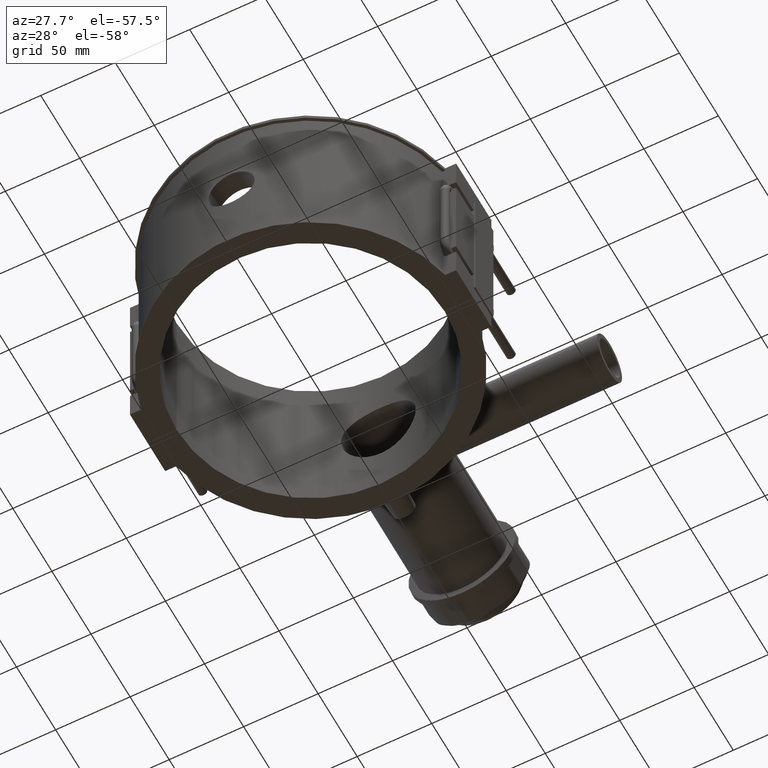
[diagram: clean part render]
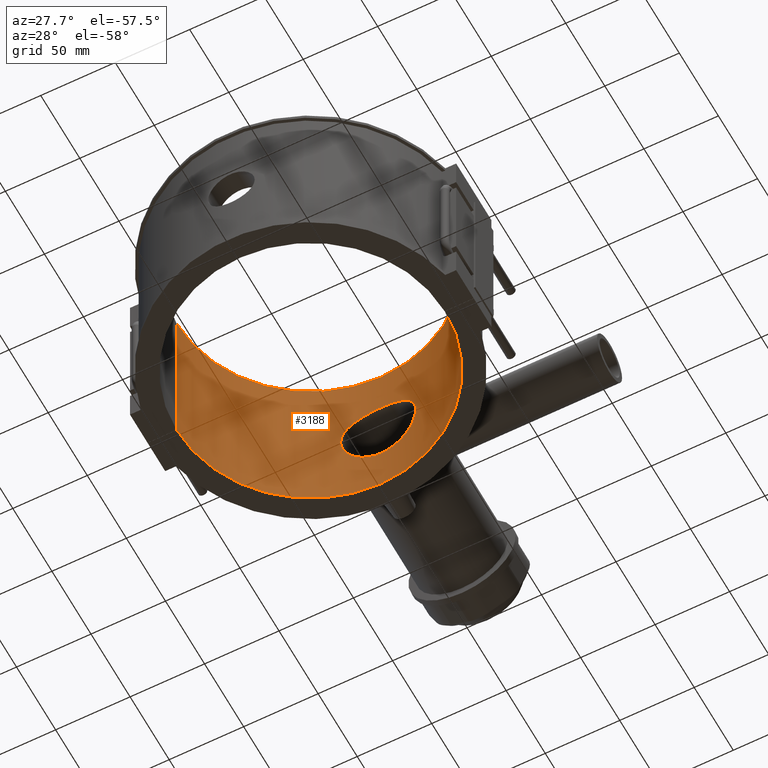
[diagram: same view with one face highlighted and labeled with its STEP entity id]
A machine part, auxiliary view. The second image highlights one B-rep face of the part: STEP entity #3188.
In plain terms, the highlighted cylindrical surface (partial cylindrical patch) has radius 90 mm, axis along (0, 0, 1).
Its self-contained STEP definition (entity closure, byte-faithful):
#267=LINE('',#6164,#546);
#314=LINE('',#6471,#593);
#546=VECTOR('',#4133,118.);
#593=VECTOR('',#4292,118.);
#810=CIRCLE('',#3468,90.);
#811=CIRCLE('',#3469,90.);
#862=FACE_BOUND('',#1273,.T.);
#1041=FACE_OUTER_BOUND('',#1272,.T.);
#1272=EDGE_LOOP('',(#2942,#2943,#2944,#2945));
#1273=EDGE_LOOP('',(#2946));
#1276=B_SPLINE_CURVE_WITH_KNOTS('',3,(#4314,#4315,#4316,#4317,#4318,#4319,
#4320,#4321,#4322,#4323,#4324,#4325,#4326,#4327,#4328,#4329,#4330,#4331,
#4332,#4333,#4334,#4335,#4336,#4337,#4338,#4339,#4340,#4341,#4342,#4343,
#4344,#4345,#4346,#4347,#4348,#4349,#4350,#4351,#4352,#4353,#4354,#4355,
#4356,#4357,#4358,#4359,#4360,#4361,#4362,#4363,#4364,#4365,#4366,#4367,
#4368,#4369,#4370,#4371,#4372,#4373,#4374,#4375,#4376,#4377,#4378,#4379),
 .UNSPECIFIED.,.T.,.F.,(4,2,2,2,2,2,2,2,2,2,2,2,2,2,2,2,2,2,2,2,2,2,2,2,
2,2,2,2,2,2,2,2,4),(0.,0.477443325081398,0.954886650162797,1.4323299752442,
1.90977330032559,2.3871099306016,2.8644465608776,3.34178319115361,3.81911982142961,
4.29645645170562,4.77379308198163,5.25112971225763,5.72846634253364,6.20590966761503,
6.68335299269643,7.16079631777783,7.63823964285923,8.11568296794063,8.59312629302203,
9.07056961810343,9.54801294318482,10.0253495734608,10.5026862037368,10.9800228340128,
11.4573594642888,11.9346960945649,12.4120327248409,12.8893693551169,13.3667059853929,
13.8441493104743,14.3215926355557,14.7990359606371,15.2764792857185),
 .UNSPECIFIED.);
#1331=VERTEX_POINT('',#4313);
#1581=VERTEX_POINT('',#6161);
#1582=VERTEX_POINT('',#6163);
#1623=VERTEX_POINT('',#6468);
#1624=VERTEX_POINT('',#6470);
#1626=EDGE_CURVE('',#1331,#1331,#1276,.T.);
#1984=EDGE_CURVE('',#1582,#1581,#267,.T.);
#2058=EDGE_CURVE('',#1624,#1623,#314,.T.);
#2063=EDGE_CURVE('',#1582,#1623,#810,.T.);
#2064=EDGE_CURVE('',#1624,#1581,#811,.T.);
#2942=ORIENTED_EDGE('',*,*,#2058,.T.);
#2943=ORIENTED_EDGE('',*,*,#2063,.F.);
#2944=ORIENTED_EDGE('',*,*,#1984,.T.);
#2945=ORIENTED_EDGE('',*,*,#2064,.F.);
#2946=ORIENTED_EDGE('',*,*,#1626,.T.);
#3009=CYLINDRICAL_SURFACE('',#3467,90.);
#3188=ADVANCED_FACE('',(#1041,#862),#3009,.F.);
#3467=AXIS2_PLACEMENT_3D('',#6479,#4301,#4302);
#3468=AXIS2_PLACEMENT_3D('',#6480,#4303,#4304);
#3469=AXIS2_PLACEMENT_3D('',#6481,#4305,#4306);
#4133=DIRECTION('',(0.,0.,-1.));
#4292=DIRECTION('',(0.,0.,1.));
#4301=DIRECTION('center_axis',(0.,0.,1.));
#4302=DIRECTION('ref_axis',(-1.,0.,0.));
#4303=DIRECTION('center_axis',(0.,0.,-1.));
#4304=DIRECTION('ref_axis',(-1.,0.,0.));
#4305=DIRECTION('center_axis',(0.,0.,1.));
#4306=DIRECTION('ref_axis',(-1.,0.,0.));
#4313=CARTESIAN_POINT('',(-25.2,86.4,3.1641356201817E-14));
#4314=CARTESIAN_POINT('Ctrl Pts',(-25.2,86.4,3.1641356201817E-14));
#4315=CARTESIAN_POINT('Ctrl Pts',(-25.2,86.4,1.59147775027136));
#4316=CARTESIAN_POINT('Ctrl Pts',(-25.04680886185,86.4451781058194,3.23439474542125));
#4317=CARTESIAN_POINT('Ctrl Pts',(-24.4048126771142,86.6286128827848,6.4968501475537));
#4318=CARTESIAN_POINT('Ctrl Pts',(-23.9161773317442,86.766705708498,8.11643115684085));
#4319=CARTESIAN_POINT('Ctrl Pts',(-22.6277583739087,87.1115909504829,11.2180470887225));
#4320=CARTESIAN_POINT('Ctrl Pts',(-21.8269517205412,87.3183021901904,12.7027151624657));
#4321=CARTESIAN_POINT('Ctrl Pts',(-19.9797093340163,87.7594036762886,15.4462296040677));
#4322=CARTESIAN_POINT('Ctrl Pts',(-18.933129949065,87.9933424113846,16.705051822737));
#4323=CARTESIAN_POINT('Ctrl Pts',(-16.7053007783193,88.4433381722002,18.9328809934827));
#4324=CARTESIAN_POINT('Ctrl Pts',(-15.4465952970086,88.6754288638796,19.9794315480119));
#4325=CARTESIAN_POINT('Ctrl Pts',(-12.7030111316839,89.1098339053098,21.8267839935761));
#4326=CARTESIAN_POINT('Ctrl Pts',(-11.2181566678658,89.3117383950323,22.6277182085153));
#4327=CARTESIAN_POINT('Ctrl Pts',(-8.11617301602074,89.646870494495,23.9162792097854));
#4328=CARTESIAN_POINT('Ctrl Pts',(-6.49641635955186,89.7800944517344,24.4049294983471));
#4329=CARTESIAN_POINT('Ctrl Pts',(-3.23391023269071,89.9567152017372,25.0468727378535));
#4330=CARTESIAN_POINT('Ctrl Pts',(-1.59112210092002,90.,25.2));
#4331=CARTESIAN_POINT('Ctrl Pts',(1.59112210092001,90.,25.2));
#4332=CARTESIAN_POINT('Ctrl Pts',(3.2339102326907,89.9567152017372,25.0468727378535));
#4333=CARTESIAN_POINT('Ctrl Pts',(6.49641635955184,89.7800944517344,24.4049294983471));
#4334=CARTESIAN_POINT('Ctrl Pts',(8.11617301602073,89.646870494495,23.9162792097854));
#4335=CARTESIAN_POINT('Ctrl Pts',(11.2181566678658,89.3117383950323,22.6277182085153));
#4336=CARTESIAN_POINT('Ctrl Pts',(12.7030111316838,89.1098339053098,21.8267839935761));
#4337=CARTESIAN_POINT('Ctrl Pts',(15.4465952970085,88.6754288638796,19.9794315480119));
#4338=CARTESIAN_POINT('Ctrl Pts',(16.7053007783193,88.4433381722003,18.9328809934827));
#4339=CARTESIAN_POINT('Ctrl Pts',(18.933129949065,87.9933424113846,16.705051822737));
#4340=CARTESIAN_POINT('Ctrl Pts',(19.9797093340163,87.7594036762886,15.4462296040677));
#4341=CARTESIAN_POINT('Ctrl Pts',(21.8269517205411,87.3183021901904,12.7027151624657));
#4342=CARTESIAN_POINT('Ctrl Pts',(22.6277583739087,87.1115909504829,11.2180470887225));
#4343=CARTESIAN_POINT('Ctrl Pts',(23.9161773317442,86.766705708498,8.11643115684086));
#4344=CARTESIAN_POINT('Ctrl Pts',(24.4048126771142,86.6286128827848,6.49685014755371));
#4345=CARTESIAN_POINT('Ctrl Pts',(25.04680886185,86.4451781058194,3.23439474542125));
#4346=CARTESIAN_POINT('Ctrl Pts',(25.2,86.4,1.59147775027136));
#4347=CARTESIAN_POINT('Ctrl Pts',(25.2,86.4,-1.5914777502713));
#4348=CARTESIAN_POINT('Ctrl Pts',(25.04680886185,86.4451781058194,-3.23439474542119));
#4349=CARTESIAN_POINT('Ctrl Pts',(24.4048126771142,86.6286128827848,-6.49685014755364));
#4350=CARTESIAN_POINT('Ctrl Pts',(23.9161773317442,86.766705708498,-8.11643115684079));
#4351=CARTESIAN_POINT('Ctrl Pts',(22.6277583739087,87.1115909504829,-11.2180470887224));
#4352=CARTESIAN_POINT('Ctrl Pts',(21.8269517205411,87.3183021901904,-12.7027151624656));
#4353=CARTESIAN_POINT('Ctrl Pts',(19.9797093340163,87.7594036762886,-15.4462296040676));
#4354=CARTESIAN_POINT('Ctrl Pts',(18.933129949065,87.9933424113846,-16.7050518227369));
#4355=CARTESIAN_POINT('Ctrl Pts',(16.7053007783193,88.4433381722003,-18.9328809934826));
#4356=CARTESIAN_POINT('Ctrl Pts',(15.4465952970086,88.6754288638796,-19.9794315480119));
#4357=CARTESIAN_POINT('Ctrl Pts',(12.7030111316839,89.1098339053098,-21.826783993576));
#4358=CARTESIAN_POINT('Ctrl Pts',(11.2181566678658,89.3117383950323,-22.6277182085152));
#4359=CARTESIAN_POINT('Ctrl Pts',(8.11617301602073,89.646870494495,-23.9162792097854));
#4360=CARTESIAN_POINT('Ctrl Pts',(6.49641635955185,89.7800944517344,-24.4049294983471));
#4361=CARTESIAN_POINT('Ctrl Pts',(3.23391023269071,89.9567152017372,-25.0468727378535));
#4362=CARTESIAN_POINT('Ctrl Pts',(1.59112210092002,90.,-25.1999999999999));
#4363=CARTESIAN_POINT('Ctrl Pts',(-1.59112210092001,90.,-25.1999999999999));
#4364=CARTESIAN_POINT('Ctrl Pts',(-3.2339102326907,89.9567152017372,-25.0468727378535));
#4365=CARTESIAN_POINT('Ctrl Pts',(-6.49641635955184,89.7800944517344,-24.4049294983471));
#4366=CARTESIAN_POINT('Ctrl Pts',(-8.11617301602073,89.646870494495,-23.9162792097854));
#4367=CARTESIAN_POINT('Ctrl Pts',(-11.2181566678658,89.3117383950323,-22.6277182085152));
#4368=CARTESIAN_POINT('Ctrl Pts',(-12.7030111316838,89.1098339053098,-21.826783993576));
#4369=CARTESIAN_POINT('Ctrl Pts',(-15.4465952970085,88.6754288638796,-19.9794315480119));
#4370=CARTESIAN_POINT('Ctrl Pts',(-16.7053007783193,88.4433381722003,-18.9328809934826));
#4371=CARTESIAN_POINT('Ctrl Pts',(-18.933129949065,87.9933424113846,-16.7050518227369));
#4372=CARTESIAN_POINT('Ctrl Pts',(-19.9797093340163,87.7594036762886,-15.4462296040676));
#4373=CARTESIAN_POINT('Ctrl Pts',(-21.8269517205411,87.3183021901904,-12.7027151624656));
#4374=CARTESIAN_POINT('Ctrl Pts',(-22.6277583739087,87.1115909504829,-11.2180470887224));
#4375=CARTESIAN_POINT('Ctrl Pts',(-23.9161773317442,86.766705708498,-8.1164311568408));
#4376=CARTESIAN_POINT('Ctrl Pts',(-24.4048126771142,86.6286128827848,-6.49685014755365));
#4377=CARTESIAN_POINT('Ctrl Pts',(-25.04680886185,86.4451781058194,-3.23439474542119));
#4378=CARTESIAN_POINT('Ctrl Pts',(-25.2,86.4,-1.5914777502713));
#4379=CARTESIAN_POINT('Ctrl Pts',(-25.2,86.4,2.99760216648792E-14));
#6161=CARTESIAN_POINT('',(-89.99998611111,0.0499999999999989,-59.));
#6163=CARTESIAN_POINT('',(-89.99998611111,0.0499999999999989,59.));
#6164=CARTESIAN_POINT('',(-89.99998611111,0.0499999999999989,0.));
#6468=CARTESIAN_POINT('',(89.99998611111,0.0499999999999989,59.));
#6470=CARTESIAN_POINT('',(89.99998611111,0.0499999999999989,-59.));
#6471=CARTESIAN_POINT('',(89.99998611111,0.0499999999999989,0.));
#6479=CARTESIAN_POINT('Origin',(0.,0.,0.));
#6480=CARTESIAN_POINT('Origin',(0.,0.,59.));
#6481=CARTESIAN_POINT('Origin',(0.,0.,-59.));